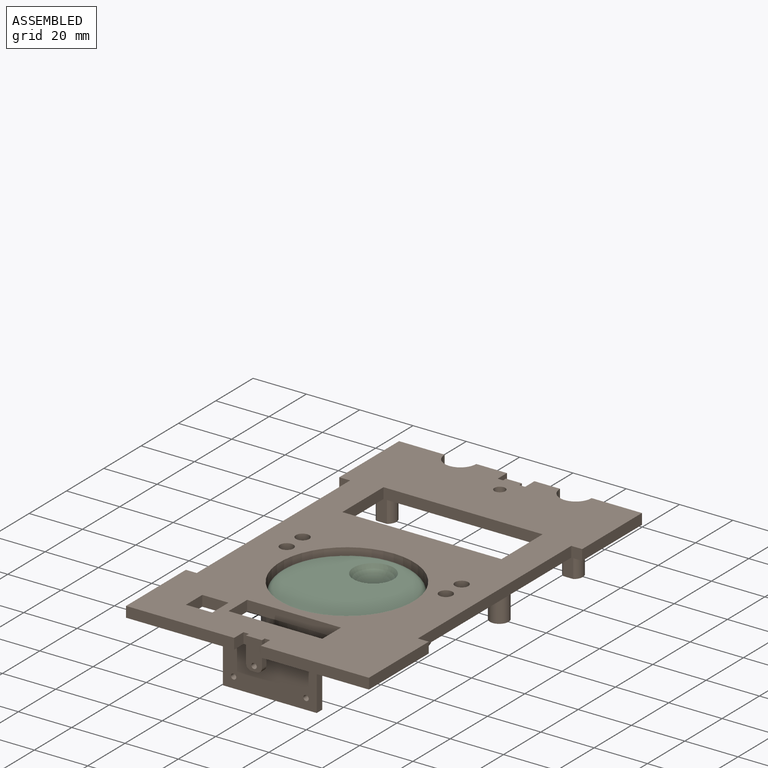
[diagram: assembled view]
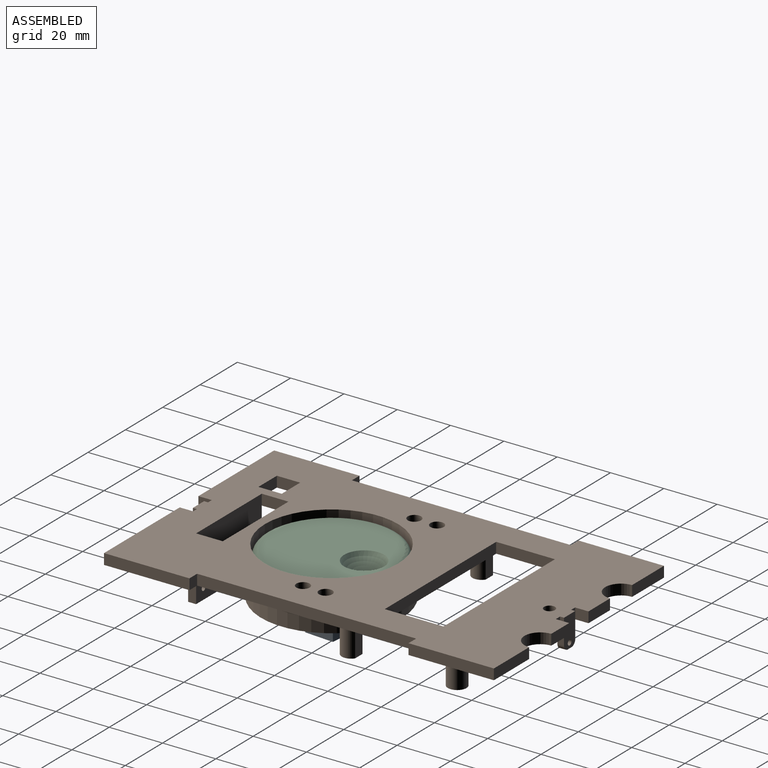
[diagram: assembled view, second angle]
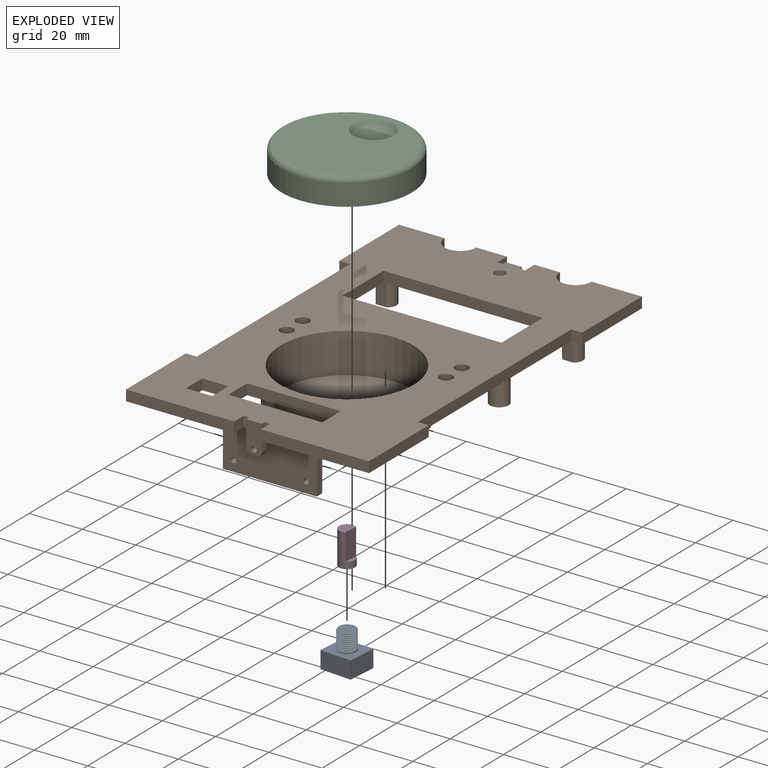
[diagram: exploded view]
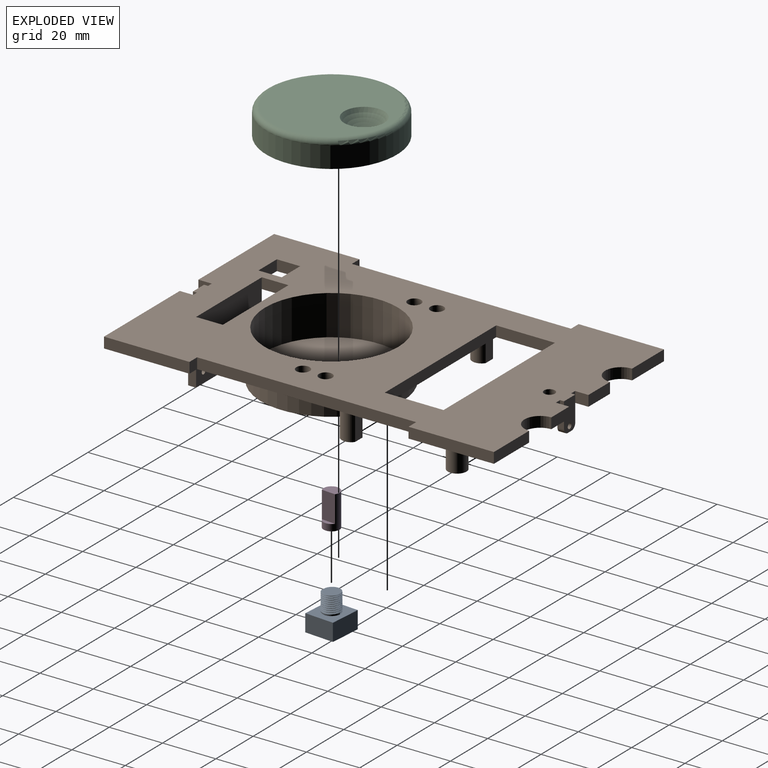
[diagram: exploded view, second angle]
ASSEMBLY  parts=4 mates=3
PART A: 13 faces, bbox 11.3x12.3x14.2 mm
  f0: cylinder r=3.38mm len=6.8mm, axis (0,0,-1), area 19.3mm2, adj f1,f3,f4,f5,f6
  f1: cone r=3.28mm half-angle=45deg, axis (0,0,-1), area 2.8mm2, adj f0,f5,f6,f12
  f2: plane 6.55x6.44mm, normal (0,0,-1), area 30.2mm2, adj f3,f4,f5
  f3: cone r=3.38mm half-angle=45deg, axis (0,0,1), area 0.4mm2, adj f0,f2,f4,f5
  f4: bspline ~7.79x7.09mm, area 117.3mm2, adj f0,f2,f3,f5,f6
  f5: bspline ~7.79x7.33mm, area 122.9mm2, adj f0,f1,f2,f3,f4,f6
  f6: plane 0.61x0.56mm, normal (0,-1,0), area 0.2mm2, adj f0,f1,f4,f5
  f7: plane 12x6.5mm, normal (1,0,0), area 78mm2, adj f8,f10,f11,f12
  f8: plane 11x6.5mm, normal (0,1,0), area 71.5mm2, adj f7,f9,f11,f12
  f9: plane 12x6.5mm, normal (-1,0,0), area 78mm2, adj f8,f10,f11,f12
  f10: plane 11x6.5mm, normal (0,-1,0), area 71.5mm2, adj f7,f9,f11,f12
  f11: plane 12x11mm, normal (0,0,1), area 132mm2, adj f7,f8,f9,f10
  f12: plane 12x11mm, normal (0,0,-1), area 98.3mm2, adj f1,f7,f8,f9,f10
PART B: 104 faces, bbox 91.1x26.6x146.3 mm
  f0: plane 146.29x91.14mm, normal (0,1,0), area 8009.1mm2, adj f1,f2,f4,f5,f6,f7,f8,f9
  f1: plane 35.19x4mm, normal (0,0,-1), area 140.8mm2, adj f0,f2,f42,f46
  f2: plane 10x4mm, normal (-1,0,0), area 40mm2, adj f0,f1,f3,f46
  f3: plane 35.19x24mm, normal (0,0,1), area 838.4mm2, adj f2,f42,f46,f98,f100,f101,f102,f103
  f4: plane 17.1x4mm, normal (0,0,1), area 68.4mm2, adj f0,f5,f43,f46
  f5: plane 32.04x4mm, normal (-1,0,0), area 128.2mm2, adj f0,f4,f6,f46
  f6: plane 4.08x4mm, normal (0,0,-1), area 16.3mm2, adj f0,f5,f7,f46
  f7: plane 82.19x4mm, normal (-1,0,0), area 328.8mm2, adj f0,f6,f8,f46
  f8: plane 4.08x4mm, normal (0,0,1), area 16.3mm2, adj f0,f7,f9,f46
  f9: plane 32.05x4mm, normal (-1,0,0), area 128.2mm2, adj f0,f8,f10,f46
  f10: plane 40.55x4mm, normal (0,0,-1), area 162.2mm2, adj f0,f9,f11,f46
  f11: plane 5.03x4mm, normal (1,0,0), area 20.1mm2, adj f0,f10,f12,f46
  f12: plane 4x2mm, normal (0,0,-1), area 8mm2, adj f0,f11,f13,f46
  f13: plane 9.5x2.5mm, normal (-1,0,0), area 19.8mm2, adj f0,f12,f14,f46,f49,f52
  f14: plane 11.5x5.99mm, normal (0,0,-1), area 64.1mm2, adj f13,f15,f46,f50,f51,f52,f55
  f15: plane 9.5x2.5mm, normal (1,0,0), area 19.8mm2, adj f0,f14,f16,f46,f49,f51
  f16: plane 4x2mm, normal (0,0,-1), area 8mm2, adj f0,f15,f17,f46
  f17: plane 5.03x4mm, normal (-1,0,0), area 20.1mm2, adj f0,f16,f18,f46
  f18: plane 40.59x4mm, normal (0,0,-1), area 162.4mm2, adj f0,f17,f19,f46
  f19: plane 32.05x4mm, normal (1,0,0), area 128.2mm2, adj f0,f18,f20,f46
  f20: plane 4.09x4mm, normal (0,0,1), area 16.4mm2, adj f0,f19,f21,f46
  f21: plane 82.19x4mm, normal (1,0,0), area 328.8mm2, adj f0,f20,f22,f46
  f22: plane 4.09x4mm, normal (0,0,-1), area 16.4mm2, adj f0,f21,f23,f46
  f23: plane 32.04x4mm, normal (1,0,0), area 128.2mm2, adj f0,f22,f24,f46
  f24: plane 18.89x4mm, normal (0,0,1), area 75.6mm2, adj f0,f23,f25,f46
  f25: cylinder r=5.92mm len=11.85mm, axis (0,1,0), area 74.5mm2, adj f0,f24,f26,f46
  f26: plane 9.6x4mm, normal (0,0,1), area 38.4mm2, adj f0,f25,f27,f46
  f27: plane 5x4mm, normal (-1,0,0), area 20mm2, adj f0,f26,f28,f46
  f28: plane 4x2.24mm, normal (0,0,1), area 9mm2, adj f0,f27,f29,f46
  f29: plane 9.5x2.5mm, normal (1,0,0), area 19.8mm2, adj f0,f28,f30,f46,f47,f53
  f30: plane 11.5x5.99mm, normal (0,0,1), area 64.1mm2, adj f29,f31,f46,f48,f53,f54,f56
  f31: plane 9.5x2.5mm, normal (-1,0,0), area 19.8mm2, adj f0,f30,f32,f46,f47,f54
  f32: plane 4x2.07mm, normal (0,0,1), area 8.3mm2, adj f0,f31,f33,f46
  f33: plane 5x4mm, normal (1,0,0), area 20mm2, adj f0,f32,f34,f46
  f34: plane 11.53x4mm, normal (0,0,1), area 46.1mm2, adj f0,f33,f43,f46
  f35: plane 8.73x4mm, normal (1,0,0), area 34.9mm2, adj f0,f36,f44,f46
  f36: plane 9.87x4mm, normal (0,0,-1), area 39.5mm2, adj f0,f35,f37,f46
  f37: plane 8.73x4mm, normal (-1,0,0), area 34.9mm2, adj f0,f36,f44,f46
  f38: plane 22.05x4mm, normal (1,0,0), area 88.2mm2, adj f0,f39,f45,f46
  f39: plane 59.69x4mm, normal (0,0,-1), area 238.8mm2, adj f0,f38,f40,f46
  f40: plane 22.05x4mm, normal (-1,0,0), area 88.2mm2, adj f0,f39,f45,f46
  f41: cylinder r=2.05mm len=4.11mm, axis (0,1,0), area 51.6mm2, adj f0,f46
  f42: plane 10x4mm, normal (1,0,0), area 40mm2, adj f0,f1,f3,f46
  f43: cylinder r=5.92mm len=11.85mm, axis (0,1,0), area 74.5mm2, adj f0,f4,f34,f46
  f44: plane 9.87x4mm, normal (0,0,1), area 39.5mm2, adj f0,f35,f37,f46
  f45: plane 59.69x4mm, normal (0,0,1), area 238.8mm2, adj f0,f38,f40,f46
  f46: plane 146.29x91.14mm, normal (0,-1,0), area 8657.4mm2, adj f1,f2,f3,f4,f5,f6,f7,f8
  f47: plane 7.5x5.99mm, normal (0,0,-1), area 40.1mm2, adj f0,f29,f31,f48,f53,f54,f56
  f48: plane 2.5x1.99mm, normal (0,1,0), area 5mm2, adj f30,f47,f53,f54
  f49: plane 7.5x5.99mm, normal (0,0,1), area 40.1mm2, adj f0,f13,f15,f50,f51,f52,f55
  f50: plane 2.5x1.99mm, normal (0,1,0), area 5mm2, adj f14,f49,f51,f52
  f51: cylinder r=2mm len=2.5mm, axis (0,0,-1), area 7.9mm2, adj f14,f15,f49,f50
  f52: cylinder r=2mm len=2.5mm, axis (0,0,1), area 7.9mm2, adj f13,f14,f49,f50
  f53: cylinder r=2mm len=2.5mm, axis (0,0,-1), area 7.9mm2, adj f29,f30,f47,f48
  f54: cylinder r=2mm len=2.5mm, axis (0,0,1), area 7.9mm2, adj f30,f31,f47,f48
  f55: cylinder r=1mm len=2.5mm, axis (0,0,1), area 15.7mm2, adj f14,f49
  f56: cylinder r=1mm len=2.5mm, axis (0,0,1), area 15.7mm2, adj f30,f47
  f57: cylinder r=3.5mm len=11.5mm, axis (0,-1,0), area 204.8mm2, adj f0,f59,f60
  f58: cylinder r=1.43mm len=11.5mm, axis (0,-1,0), area 103mm2, adj f60,f61
  f59: plane 11.5x3.94mm, normal (0,0,1), area 45.3mm2, adj f0,f57,f60
  f60: plane 7x6.39mm, normal (0,1,0), area 30.5mm2, adj f57,f58,f59
  f61: plane 2.85x2.85mm, normal (0,1,0), area 6.4mm2, adj f58
  f62: cylinder r=3.5mm len=11.5mm, axis (0,-1,0), area 204.8mm2, adj f0,f64,f65
  f63: cylinder r=1.43mm len=11.5mm, axis (0,-1,0), area 103mm2, adj f65,f66
  f64: plane 11.5x3.94mm, normal (0,0,1), area 45.3mm2, adj f0,f62,f65
  f65: plane 7x6.39mm, normal (0,1,0), area 30.5mm2, adj f62,f63,f64
  f66: plane 2.85x2.85mm, normal (0,1,0), area 6.4mm2, adj f63
  f67: plane 11.5x3.9mm, normal (0,0,-1), area 44.8mm2, adj f0,f69,f70
  f68: cylinder r=1.43mm len=11.5mm, axis (0,-1,0), area 103mm2, adj f70,f71
  f69: cylinder r=3.5mm len=11.5mm, axis (0,-1,0), area 205.4mm2, adj f0,f67,f70
  f70: plane 7x6.41mm, normal (0,1,0), area 30.5mm2, adj f67,f68,f69
  f71: plane 2.85x2.85mm, normal (0,1,0), area 6.4mm2, adj f68
  f72: plane 11.5x3.9mm, normal (0,0,-1), area 44.8mm2, adj f0,f74,f75
  f73: cylinder r=1.43mm len=11.5mm, axis (0,-1,0), area 103mm2, adj f75,f76
  f74: cylinder r=3.5mm len=11.5mm, axis (0,-1,0), area 205.4mm2, adj f0,f72,f75
  f75: plane 7x6.41mm, normal (0,1,0), area 30.5mm2, adj f72,f73,f74
  f76: plane 2.85x2.85mm, normal (0,1,0), area 6.4mm2, adj f73
  f77: cylinder r=4mm len=8mm, axis (0,1,0), area 88mm2, adj f0,f79
  f78: cylinder r=2.5mm len=7.5mm, axis (0,1,0), area 117.8mm2, adj f46,f79
  f79: plane 8x8mm, normal (0,1,0), area 30.6mm2, adj f77,f78
  f80: cylinder r=4mm len=8mm, axis (0,1,0), area 88mm2, adj f0,f82
  f81: cylinder r=2.5mm len=7.5mm, axis (0,1,0), area 117.8mm2, adj f46,f82
  f82: plane 8x8mm, normal (0,1,0), area 30.6mm2, adj f80,f81
  f83: cylinder r=4mm len=8mm, axis (0,1,0), area 88mm2, adj f0,f85
  f84: cylinder r=2.5mm len=7.5mm, axis (0,1,0), area 117.8mm2, adj f46,f85
  f85: plane 8x8mm, normal (0,1,0), area 30.6mm2, adj f83,f84
  f86: cylinder r=4mm len=8mm, axis (0,1,0), area 88mm2, adj f0,f88
  f87: cylinder r=2.5mm len=7.5mm, axis (0,1,0), area 117.8mm2, adj f46,f88
  f88: plane 8x8mm, normal (0,1,0), area 30.6mm2, adj f86,f87
  f89: cylinder r=26.5mm len=53mm, axis (0,1,0), area 2331.1mm2, adj f0,f91
  f90: cylinder r=25mm len=50mm, axis (0,1,0), area 2356.2mm2, adj f46,f92
  f91: plane 53x53mm, normal (0,1,0), area 1715.3mm2, adj f89,f97
  f92: plane 50x50mm, normal (0,-1,0), area 1830.8mm2, adj f90,f94
  f93: plane 15x15mm, normal (0,1,0), area 138.2mm2, adj f96,f97
  f94: cylinder r=6.5mm len=13mm, axis (0,-1,0), area 224.6mm2, adj f92,f95
  f95: plane 13x13mm, normal (0,-1,0), area 94.2mm2, adj f94,f96
  f96: cylinder r=3.5mm len=7mm, axis (0,1,0), area 55mm2, adj f93,f95
  f97: torus R=12.5mm, axis (0,-1,0), area 459.8mm2, adj f91,f93
  f98: plane 20x3mm, normal (1,0,0), area 60mm2, adj f0,f3,f99,f101
  f99: plane 35.19x20mm, normal (0,0,-1), area 697.6mm2, adj f0,f98,f100,f101,f102,f103
  f100: plane 20x3mm, normal (-1,0,0), area 60mm2, adj f0,f3,f99,f101
  f101: plane 35.19x3mm, normal (0,1,0), area 105.6mm2, adj f3,f98,f99,f100
  f102: cylinder r=1mm len=3mm, axis (0,0,1), area 18.8mm2, adj f3,f99
  f103: cylinder r=1mm len=3mm, axis (0,0,1), area 18.8mm2, adj f3,f99
PART C: 9 faces, bbox 53x10x53 mm
  f0: cylinder r=24.5mm len=49mm, axis (0,1,0), area 1231.5mm2, adj f2,f3
  f1: plane 45x45mm, normal (0,-1,0), area 1413.7mm2, adj f3,f8
  f2: plane 49x49mm, normal (0,1,0), area 1861mm2, adj f0,f4,f5
  f3: torus R=22.5mm, axis (0,-1,0), area 469.3mm2, adj f0,f1
  f4: plane 9x5.4mm, normal (1,0,0), area 48.6mm2, adj f2,f5,f6
  f5: cylinder r=3.12mm len=9mm, axis (0,1,0), area 118.1mm2, adj f2,f4,f6
  f6: plane 6.25x4.7mm, normal (0,1,0), area 24.7mm2, adj f4,f5
  f7: plane 2.35x2.35mm, normal (0,-1,0), area 4.3mm2, adj f8
  f8: torus R=1.18mm, axis (0,1,0), area 234.2mm2, adj f1,f7
PART D: 7 faces, bbox 6x6x13.1 mm
  f0: plane 10x5.2mm, normal (1,0,0), area 52mm2, adj f1,f2,f3
  f1: cylinder r=3mm len=12.5mm, axis (0,0,-1), area 172.8mm2, adj f0,f2,f3,f4
  f2: plane 6x4.5mm, normal (0,0,1), area 22.7mm2, adj f0,f1
  f3: plane 5.2x1.5mm, normal (0,0,1), area 5.5mm2, adj f0,f1
  f4: plane 6x6mm, normal (0,0,-1), area 21.2mm2, adj f1,f5
  f5: cylinder r=1.5mm len=3mm, axis (0,0,1), area 5.7mm2, adj f4,f6
  f6: plane 3x3mm, normal (0,0,-1), area 7.1mm2, adj f5
PLACE A rot(axis=(0.73,0.68,0),180deg) t=(-92.03,-1.02,22.73)mm
PLACE B rot(axis=(-1,0,0),90deg) t=(-91.95,18.73,34.73)mm fixed
PLACE C rot(axis=(-0.03,-0.71,0.71),176.8deg) t=(-92.1,-1.01,26.83)mm
PLACE D rot(axis=(0,0,-1),4.5deg) t=(-92.03,-1.02,25.83)mm
MATE revolute B.f89 <-> A.f0  axis (0,0,-1) through (-92.03,-1.02,15.73)mm
MATE fastened D.f5 <-> A.f0  axis (0,0,-1) through (-92.03,-1.02,22.73)mm
MATE fastened C.f6 <-> D.f2  axis (0,0,-1) through (-90.53,-1.14,35.83)mm
